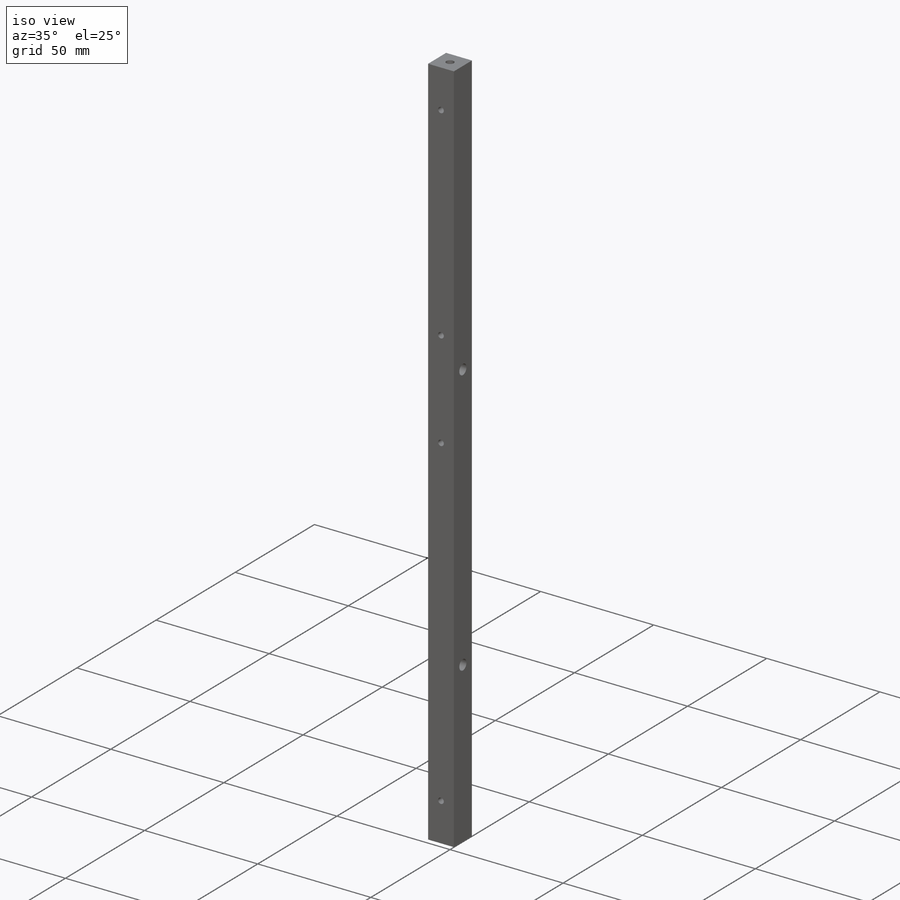
[diagram: iso view]
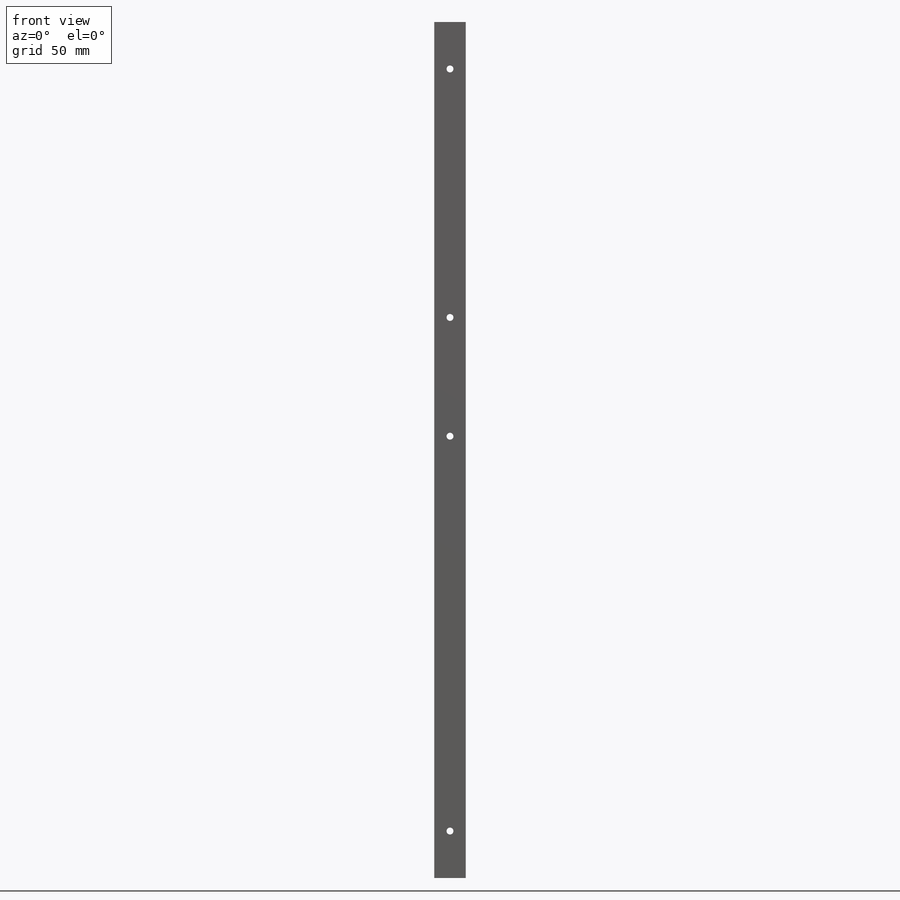
[diagram: front view]
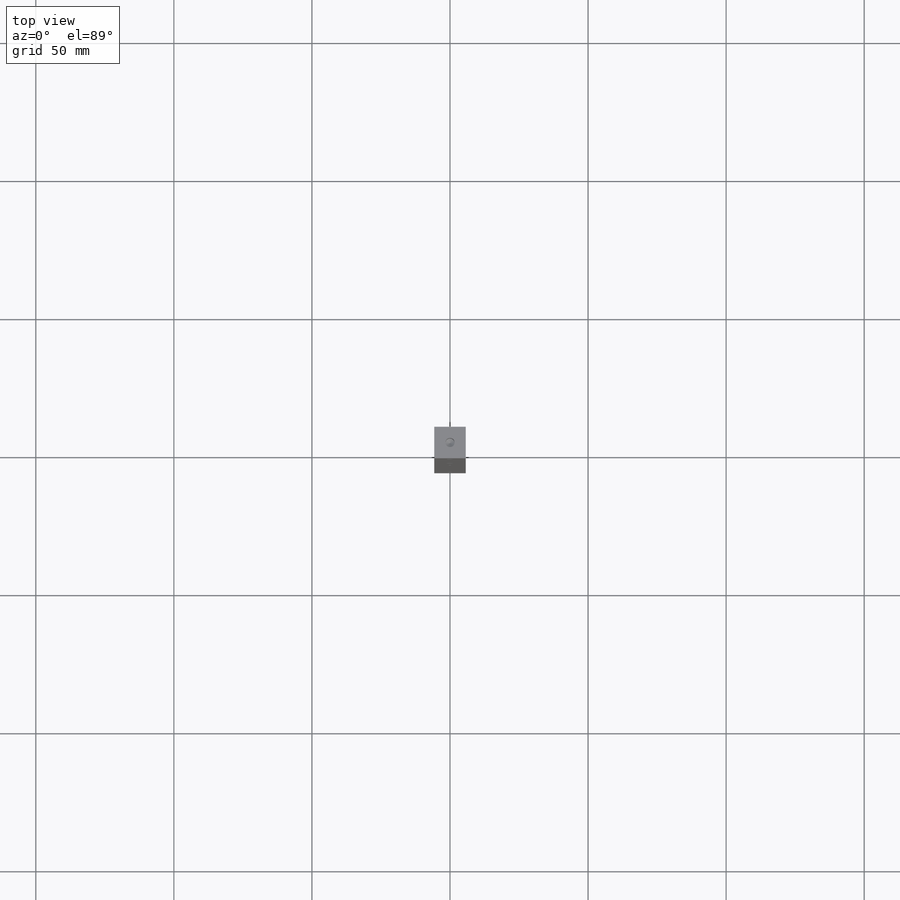
[diagram: top view]
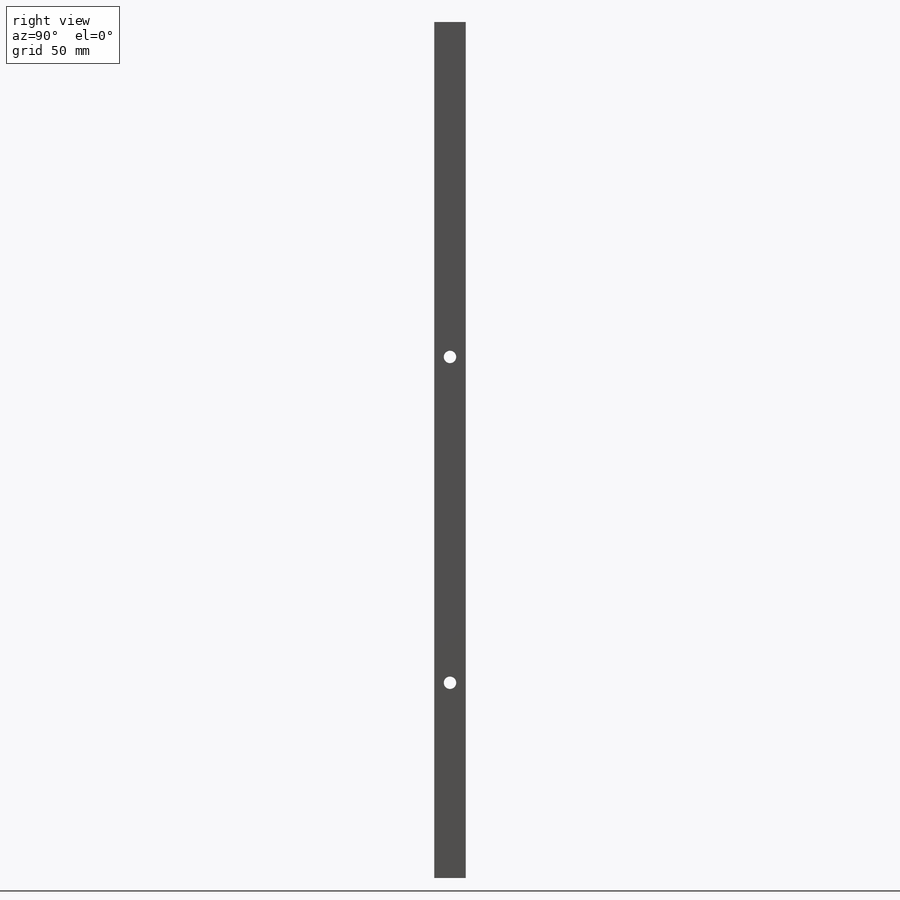
[diagram: right view]
SOLIDWORKS PART (.sldprt)
format: sldprt  version: not decoded by parser v0  size: 309,248 bytes
history: native  units: mm
features: sketch x14, thread x6, hole x5, plane x3, material x1, extrude x1 (+13 scaffold rows collapsed)
feature tree (43):
  scaffold x13  (default folders/planes/origin — collapsed)
  material  "Matériau <non spécifié>"
  plane  "Plan de face"
  plane  "Plan de dessus"
  plane  "Plan de droite"
  sketch  "Esquisse1"  dims[D1=11.4mm D2=11.4mm]
  extrude  "Boss.-Extru.1"  Depth=310mm
  sketch  "Esquisse2"  dims[D1=5.7mm D2=5.7mm D3=17.0mm D4=17.0mm D5=5.7mm D6=143.0mm D7=5.7mm D8=90.0mm]
  hole  "Trou taraudé M31"  [1 undecoded]
  sketch  "Esquisse4"
  thread  "Filetage de perçage1"  Diameter=3mm  [1 undecoded]
  thread  "Filetage de perçage2"  Diameter=3mm  [1 undecoded]
  sketch  "Esquisse3"  dims[hole-wizard template sketch: 60 standard entries collapsed; hole parameters kept: c18.Profondeur du trou pour taraudage jusqu'au prochain=11.4mm]
  thread  "Filetage de perçage5"  Diameter=3mm  [1 undecoded]
  thread  "Filetage de perçage6"  Diameter=3mm  [1 undecoded]
  hole  "Trou taraudé M41"  Diameter=3.3mm Depth=11.5mm
  sketch  "Esquisse6"
  sketch  "Esquisse5"  dims[hole-wizard template sketch: 47 standard entries collapsed; hole parameters kept: c15.Profondeur du trou pour taraudage=11.5mm c15.D3=~14.816244mm c15.Angle de pointe=118.0deg]
  thread  "Filetage de perçage3"  Diameter=8mm  [1 undecoded]
  hole  "Trou taraudé M42"  Diameter=3.3mm Depth=11.5mm
  sketch  "Esquisse8"
  sketch  "Esquisse7"  dims[hole-wizard template sketch: 47 standard entries collapsed; hole parameters kept: c15.Profondeur du trou pour taraudage=11.5mm c15.D3=~14.816244mm c15.Angle de pointe=118.0deg]
  thread  "Filetage de perçage4"  Diameter=8mm  [1 undecoded]
  sketch  "Esquisse9"  dims[D1=5.7mm D2=70.7mm]
  hole  "Dégagement M41"  Diameter=4.5mm Depth=11.4mm
  sketch  "Esquisse11"
  sketch  "Esquisse10"  dims[hole-wizard template sketch: 60 standard entries collapsed; hole parameters kept: c18.Profondeur du perçage jusqu'au prochain=11.4mm]
  sketch  "Esquisse12"  dims[D1=5.7mm D2=188.7mm]
  hole  "Dégagement M42"  Diameter=4.5mm Depth=11.4mm
  sketch  "Esquisse14"
  sketch  "Esquisse13"  dims[hole-wizard template sketch: 60 standard entries collapsed; hole parameters kept: c18.Profondeur du perçage jusqu'au prochain=11.4mm]
decode coverage: 20 of 26 modeling features carry decoded parameters
note: ~ marks probable driven/reference dimensions
note: 7 parameter values undecoded
summary: Diameter pulled from absorbed wizard sketch
note: suppression state not decoded; provenance and decode notes live in map.json
